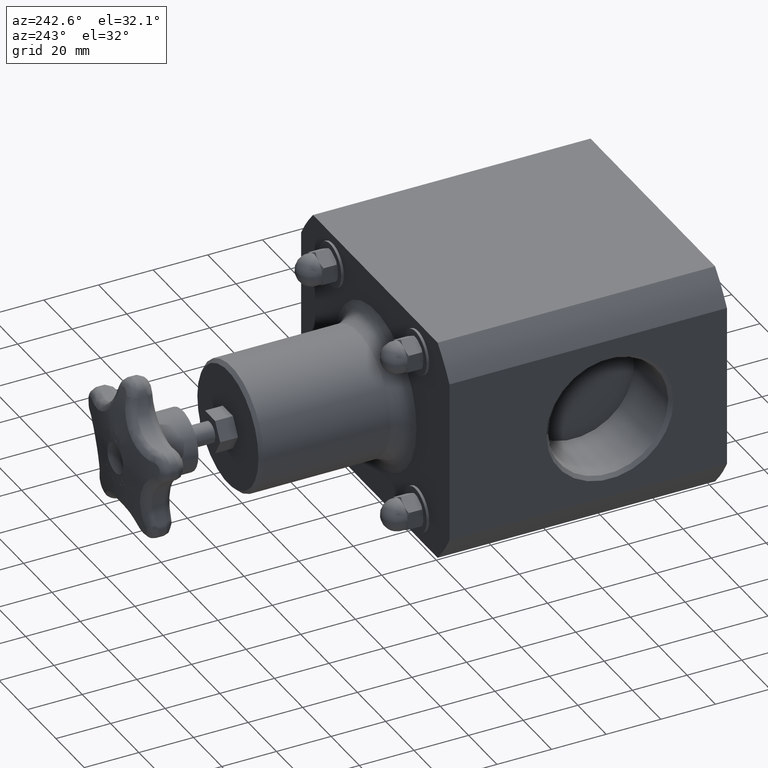
[diagram: clean part render]
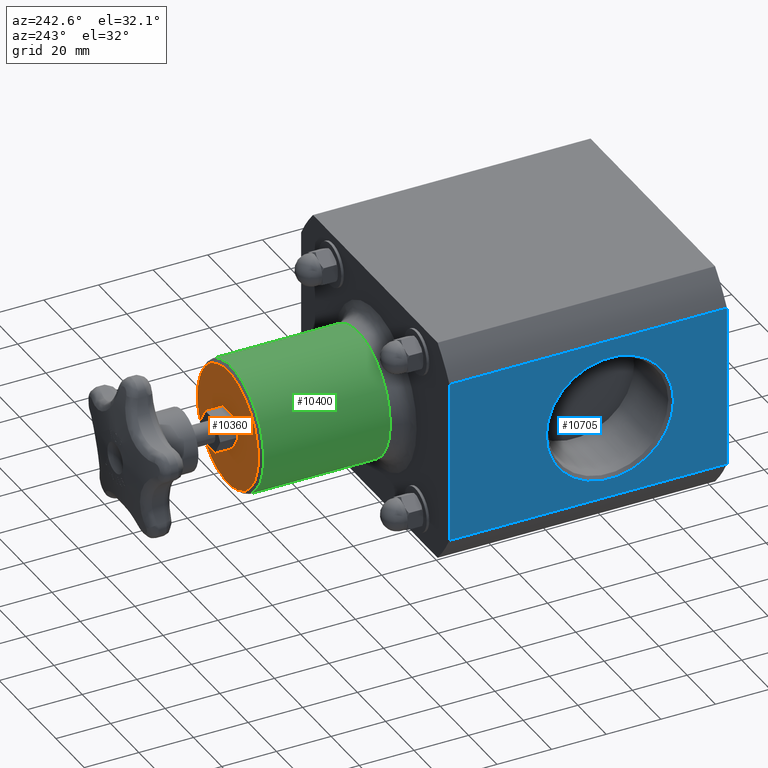
[diagram: same view with three faces highlighted in distinct colors, each labeled with its STEP entity id]
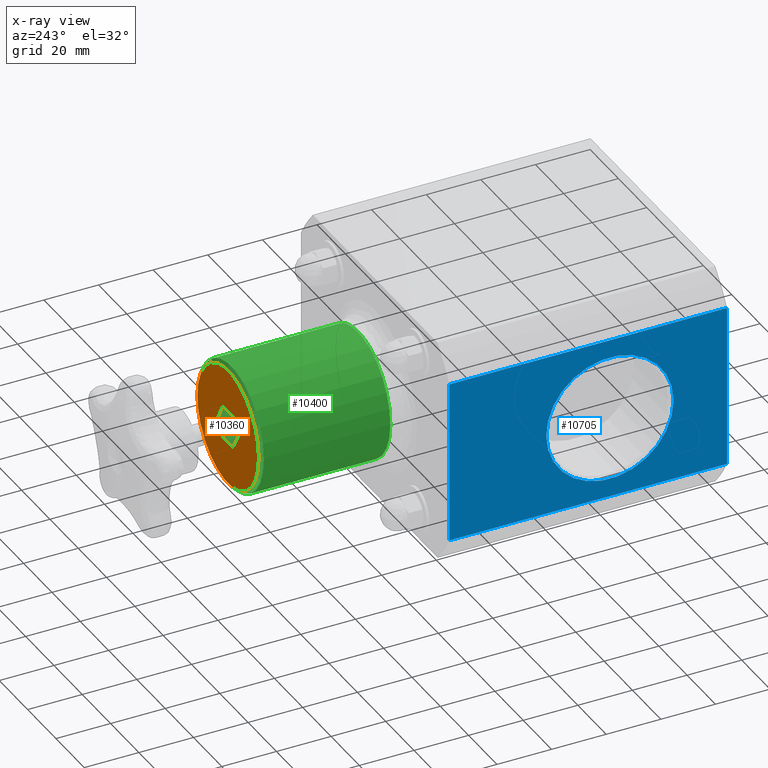
[diagram: x-ray of the same camera — body ghosted, the three highlighted faces saturated]
A machine part, auxiliary view with three faces highlighted in distinct colors.
The next image is the same camera in x-ray (body ghosted, the three faces saturated) — at least one of them is partly hidden behind the body in this view.
Their STEP definitions:

[orange] entity #10360 — the highlighted planar face has unit normal (0, 1, 0).
#7378=CARTESIAN_POINT('',(-0.282324281633732,6.125000000000001,-7.142915E-016));
#7379=VERTEX_POINT('',#7378);
#7386=CARTESIAN_POINT('',(-0.141162140816869,6.125000000000001,0.244499999999999));
#7387=VERTEX_POINT('',#7386);
#7388=CARTESIAN_POINT('',(-0.141162140816869,6.125000000000000,0.244500000000000));
#7389=DIRECTION('',(-0.500000000000000,0.0,-0.866025403784439));
#7390=VECTOR('',#7389,0.282324281633727);
#7391=LINE('',#7388,#7390);
#7392=EDGE_CURVE('',#7387,#7379,#7391,.T.);
#7409=CARTESIAN_POINT('',(-0.141162140816869,6.125000000000001,-0.244500000000001));
#7410=VERTEX_POINT('',#7409);
#7417=CARTESIAN_POINT('',(-0.282324281633732,6.125000000000000,-7.771561E-016));
#7418=DIRECTION('',(0.500000000000001,0.0,-0.866025403784438));
#7419=VECTOR('',#7418,0.282324281633727);
#7420=LINE('',#7417,#7419);
#7421=EDGE_CURVE('',#7379,#7410,#7420,.T.);
#7433=CARTESIAN_POINT('',(0.141162140816858,6.125000000000001,-0.244500000000000));
#7434=VERTEX_POINT('',#7433);
#7441=CARTESIAN_POINT('',(-0.141162140816869,6.125000000000001,-0.244500000000001));
#7442=DIRECTION('',(1.0,0.0,0.0));
#7443=VECTOR('',#7442,0.282324281633727);
#7444=LINE('',#7441,#7443);
#7445=EDGE_CURVE('',#7410,#7434,#7444,.T.);
#7457=CARTESIAN_POINT('',(0.282324281633722,6.125000000000001,-3.944692E-016));
#7458=VERTEX_POINT('',#7457);
#7465=CARTESIAN_POINT('',(0.141162140816858,6.125000000000001,-0.244500000000000));
#7466=DIRECTION('',(0.500000000000000,0.0,0.866025403784439));
#7467=VECTOR('',#7466,0.282324281633727);
#7468=LINE('',#7465,#7467);
#7469=EDGE_CURVE('',#7434,#7458,#7468,.T.);
#7481=CARTESIAN_POINT('',(0.141162140816858,6.125000000000001,0.244499999999999));
#7482=VERTEX_POINT('',#7481);
#7489=CARTESIAN_POINT('',(0.282324281633722,6.125000000000001,-3.816392E-016));
#7490=DIRECTION('',(-0.500000000000000,0.0,0.866025403784438));
#7491=VECTOR('',#7490,0.282324281633727);
#7492=LINE('',#7489,#7491);
#7493=EDGE_CURVE('',#7458,#7482,#7492,.T.);
#7506=CARTESIAN_POINT('',(0.141162140816858,6.125000000000001,0.244499999999999));
#7507=DIRECTION('',(-1.0,0.0,0.0));
#7508=VECTOR('',#7507,0.282324281633727);
#7509=LINE('',#7506,#7508);
#7510=EDGE_CURVE('',#7482,#7387,#7509,.T.);
#10336=CARTESIAN_POINT('',(0.518749999999996,6.125000000000001,-4.858351E-016));
#10337=DIRECTION('',(0.0,1.0,0.0));
#10338=DIRECTION('',(0.0,0.0,1.0));
#10339=AXIS2_PLACEMENT_3D('',#10336,#10337,#10338);
#10340=PLANE('',#10339);
#10341=CARTESIAN_POINT('',(0.849999999999996,6.125000000000002,-5.260662E-016));
#10342=VERTEX_POINT('',#10341);
#10343=CARTESIAN_POINT('',(-4.065266E-015,6.125000000000001,-4.228317E-016));
#10344=DIRECTION('',(0.0,-1.0,0.0));
#10345=DIRECTION('',(1.0,0.0,0.0));
#10346=AXIS2_PLACEMENT_3D('',#10343,#10344,#10345);
#10347=CIRCLE('',#10346,0.850000000000000);
#10348=EDGE_CURVE('',#10342,#10342,#10347,.T.);
#10349=ORIENTED_EDGE('',*,*,#10348,.F.);
#10350=EDGE_LOOP('',(#10349));
#10351=FACE_OUTER_BOUND('',#10350,.T.);
#10352=ORIENTED_EDGE('',*,*,#7392,.T.);
#10353=ORIENTED_EDGE('',*,*,#7421,.T.);
#10354=ORIENTED_EDGE('',*,*,#7445,.T.);
#10355=ORIENTED_EDGE('',*,*,#7469,.T.);
#10356=ORIENTED_EDGE('',*,*,#7493,.T.);
#10357=ORIENTED_EDGE('',*,*,#7510,.T.);
#10358=EDGE_LOOP('',(#10352,#10353,#10354,#10355,#10356,#10357));
#10359=FACE_BOUND('',#10358,.T.);
#10360=ADVANCED_FACE('',(#10351,#10359),#10340,.T.);

[blue] entity #10705 — the highlighted planar face has unit normal (-1, 0, 0).
#10533=CARTESIAN_POINT('',(-2.062500000000000,-1.368093E-015,1.177590230088549));
#10534=VERTEX_POINT('',#10533);
#10542=CARTESIAN_POINT('',(-2.062500000000001,-6.927588E-016,-1.177590230088547));
#10543=VERTEX_POINT('',#10542);
#10544=CARTESIAN_POINT('',(-2.062500000000001,-6.927588E-016,-1.177590230088547));
#10545=DIRECTION('',(0.0,0.0,1.0));
#10546=VECTOR('',#10545,2.355180460177095);
#10547=LINE('',#10544,#10546);
#10548=EDGE_CURVE('',#10543,#10534,#10547,.T.);
#10648=CARTESIAN_POINT('',(-2.062500000000002,2.604187499999998,4.982123E-016));
#10649=VERTEX_POINT('',#10648);
#10650=CARTESIAN_POINT('',(-2.062500000000001,1.686999999999997,3.475373E-016));
#10651=DIRECTION('',(-1.0,0.0,0.0));
#10652=DIRECTION('',(0.0,-1.0,0.0));
#10653=AXIS2_PLACEMENT_3D('',#10650,#10651,#10652);
#10654=CIRCLE('',#10653,0.917187500000002);
#10655=EDGE_CURVE('',#10649,#10649,#10654,.T.);
#10672=CARTESIAN_POINT('',(-2.062500000000000,-1.368093E-015,1.177590230088549));
#10673=DIRECTION('',(-1.0,0.0,0.0));
#10674=DIRECTION('',(0.0,0.0,1.0));
#10675=AXIS2_PLACEMENT_3D('',#10672,#10673,#10674);
#10676=PLANE('',#10675);
#10677=CARTESIAN_POINT('',(-2.062500000000003,4.000000000000000,-1.177590230088547));
#10678=VERTEX_POINT('',#10677);
#10679=CARTESIAN_POINT('',(-2.062500000000001,-6.927588E-016,-1.177590230088547));
#10680=DIRECTION('',(0.0,1.0,0.0));
#10681=VECTOR('',#10680,4.0);
#10682=LINE('',#10679,#10681);
#10683=EDGE_CURVE('',#10543,#10678,#10682,.T.);
#10684=ORIENTED_EDGE('',*,*,#10683,.F.);
#10685=ORIENTED_EDGE('',*,*,#10548,.T.);
#10686=CARTESIAN_POINT('',(-2.062500000000002,4.000000000000000,1.177590230088548));
#10687=VERTEX_POINT('',#10686);
#10688=CARTESIAN_POINT('',(-2.062500000000000,-1.368093E-015,1.177590230088549));
#10689=DIRECTION('',(0.0,1.0,0.0));
#10690=VECTOR('',#10689,4.000000000000001);
#10691=LINE('',#10688,#10690);
#10692=EDGE_CURVE('',#10534,#10687,#10691,.T.);
#10693=ORIENTED_EDGE('',*,*,#10692,.T.);
#10694=CARTESIAN_POINT('',(-2.062500000000002,4.000000000000000,1.177590230088548));
#10695=DIRECTION('',(0.0,0.0,-1.0));
#10696=VECTOR('',#10695,2.355180460177095);
#10697=LINE('',#10694,#10696);
#10698=EDGE_CURVE('',#10687,#10678,#10697,.T.);
#10699=ORIENTED_EDGE('',*,*,#10698,.T.);
#10700=EDGE_LOOP('',(#10684,#10685,#10693,#10699));
#10701=FACE_OUTER_BOUND('',#10700,.T.);
#10702=ORIENTED_EDGE('',*,*,#10655,.F.);
#10703=EDGE_LOOP('',(#10702));
#10704=FACE_BOUND('',#10703,.T.);
#10705=ADVANCED_FACE('',(#10701,#10704),#10676,.T.);

[green] entity #10400 — the highlighted cylindrical surface (bore or boss wall) has radius 22.86 mm, axis along (0, -1, 0).
#10366=CARTESIAN_POINT('',(0.899999999999996,6.075000000000002,-5.321388E-016));
#10367=VERTEX_POINT('',#10366);
#10368=CARTESIAN_POINT('',(-4.032004E-015,6.075000000000001,-4.228317E-016));
#10369=DIRECTION('',(0.0,-1.0,0.0));
#10370=DIRECTION('',(1.0,0.0,0.0));
#10371=AXIS2_PLACEMENT_3D('',#10368,#10369,#10370);
#10372=CIRCLE('',#10371,0.900000000000000);
#10373=EDGE_CURVE('',#10367,#10367,#10372,.T.);
#10381=CARTESIAN_POINT('',(-3.424971E-015,5.162500000000001,-4.228317E-016));
#10382=DIRECTION('',(6.652417E-016,-1.0,2.759824E-031));
#10383=DIRECTION('',(1.0,0.0,0.0));
#10384=AXIS2_PLACEMENT_3D('',#10381,#10382,#10383);
#10385=CYLINDRICAL_SURFACE('',#10384,0.900000000000000);
#10386=CARTESIAN_POINT('',(0.899999999999997,4.250000000000001,-5.321388E-016));
#10387=VERTEX_POINT('',#10386);
#10388=CARTESIAN_POINT('',(-2.817938E-015,4.250000000000001,-4.228317E-016));
#10389=DIRECTION('',(0.0,-1.0,0.0));
#10390=DIRECTION('',(1.0,0.0,0.0));
#10391=AXIS2_PLACEMENT_3D('',#10388,#10389,#10390);
#10392=CIRCLE('',#10391,0.900000000000000);
#10393=EDGE_CURVE('',#10387,#10387,#10392,.T.);
#10394=ORIENTED_EDGE('',*,*,#10393,.F.);
#10395=EDGE_LOOP('',(#10394));
#10396=FACE_OUTER_BOUND('',#10395,.T.);
#10397=ORIENTED_EDGE('',*,*,#10373,.T.);
#10398=EDGE_LOOP('',(#10397));
#10399=FACE_BOUND('',#10398,.T.);
#10400=ADVANCED_FACE('',(#10396,#10399),#10385,.T.);